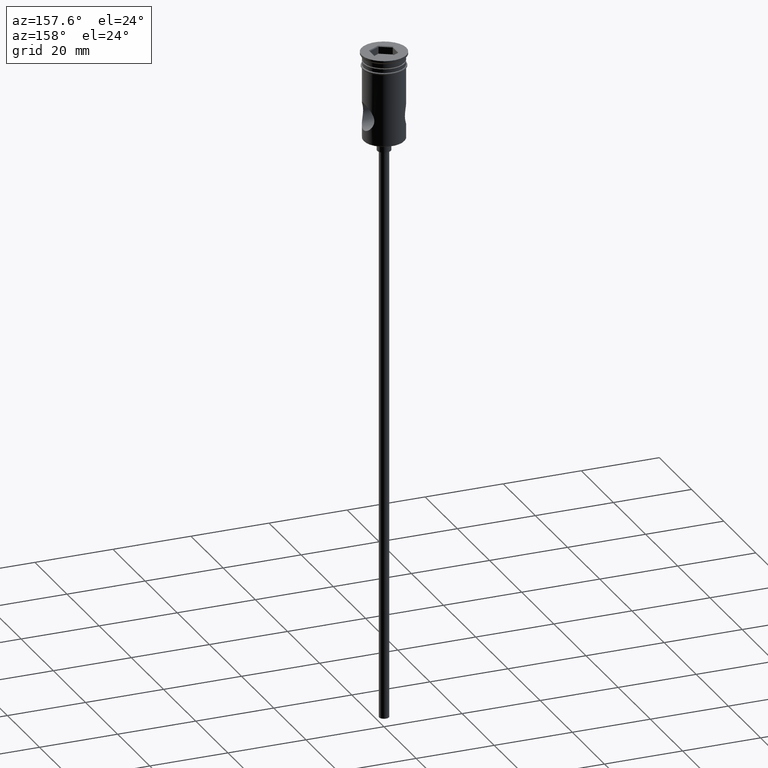
[diagram: clean part render]
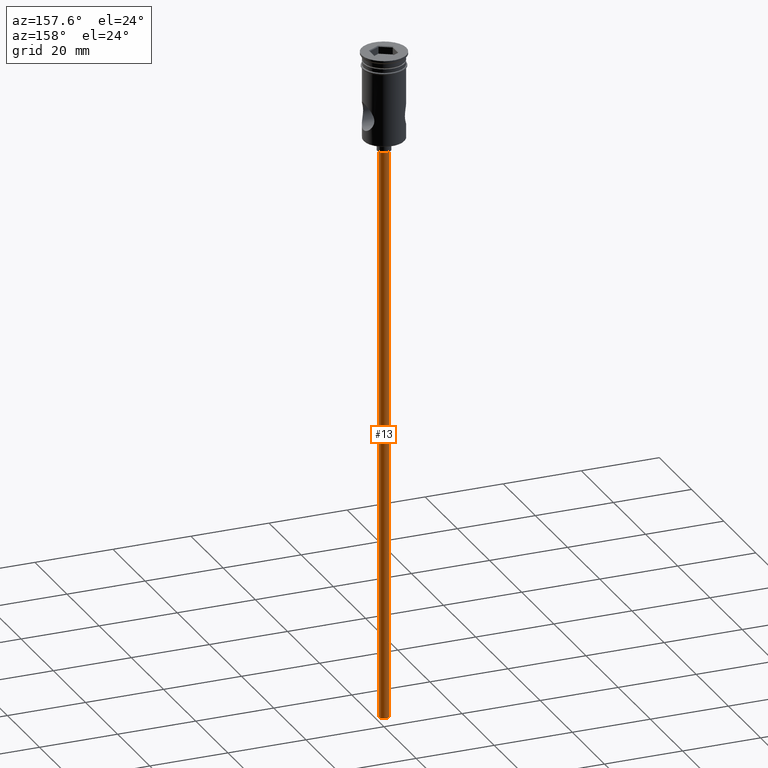
[diagram: same view with one face highlighted and labeled with its STEP entity id]
A machine part, auxiliary view. The second image highlights one B-rep face of the part: STEP entity #13.
In plain terms, the highlighted cylindrical surface (edge-blend (fillet) strip) has radius 1.25 mm, axis along (-0, -0, 1).
Its self-contained STEP definition (entity closure, byte-faithful):
#13 = ADVANCED_FACE ( 'NONE', ( #1373 ), #356, .T. ) ;
#43 = DIRECTION ( 'NONE',  ( 0.000000000000000000, 0.000000000000000000, -1.000000000000000000 ) ) ;
#44 = EDGE_LOOP ( 'NONE', ( #45, #599, #347, #1328 ) ) ;
#45 = ORIENTED_EDGE ( 'NONE', *, *, #849, .F. ) ;
#46 = CARTESIAN_POINT ( 'NONE',  ( 1.250000000000000000, 0.000000000000000000, -172.5000000000000000 ) ) ;
#68 = EDGE_CURVE ( 'NONE', #1384, #1239, #354, .T. ) ;
#77 = LINE ( 'NONE', #300, #545 ) ;
#113 = AXIS2_PLACEMENT_3D ( 'NONE', #806, #366, #217 ) ;
#187 = DIRECTION ( 'NONE',  ( -0.000000000000000000, -0.000000000000000000, 1.000000000000000000 ) ) ;
#200 = VERTEX_POINT ( 'NONE', #883 ) ;
#217 = DIRECTION ( 'NONE',  ( 1.000000000000000000, 0.000000000000000000, 0.000000000000000000 ) ) ;
#230 = DIRECTION ( 'NONE',  ( -1.000000000000000000, 0.000000000000000000, 0.000000000000000000 ) ) ;
#242 = CARTESIAN_POINT ( 'NONE',  ( 0.000000000000000000, 0.000000000000000000, -172.5000000000000000 ) ) ;
#300 = CARTESIAN_POINT ( 'NONE',  ( 1.250000000000000000, 0.000000000000000000, -172.5000000000000000 ) ) ;
#347 = ORIENTED_EDGE ( 'NONE', *, *, #68, .T. ) ;
#351 = DIRECTION ( 'NONE',  ( 0.000000000000000000, 0.000000000000000000, -1.000000000000000000 ) ) ;
#354 = CIRCLE ( 'NONE', #383, 1.250000000000000000 ) ;
#356 = CYLINDRICAL_SURFACE ( 'NONE', #113, 1.250000000000000000 ) ;
#366 = DIRECTION ( 'NONE',  ( -0.000000000000000000, -0.000000000000000000, 1.000000000000000000 ) ) ;
#383 = AXIS2_PLACEMENT_3D ( 'NONE', #1353, #351, #1233 ) ;
#403 = CARTESIAN_POINT ( 'NONE',  ( 1.250000000000000000, 0.000000000000000000, -25.50000000000000000 ) ) ;
#466 = CARTESIAN_POINT ( 'NONE',  ( -1.250000000000000000, 1.530808498934191571E-16, -25.50000000000000000 ) ) ;
#502 = VECTOR ( 'NONE', #756, 1000.000000000000000 ) ;
#532 = LINE ( 'NONE', #1332, #502 ) ;
#545 = VECTOR ( 'NONE', #187, 1000.000000000000000 ) ;
#597 = EDGE_CURVE ( 'NONE', #200, #1384, #532, .T. ) ;
#599 = ORIENTED_EDGE ( 'NONE', *, *, #597, .T. ) ;
#638 = AXIS2_PLACEMENT_3D ( 'NONE', #242, #43, #230 ) ;
#748 = VERTEX_POINT ( 'NONE', #46 ) ;
#756 = DIRECTION ( 'NONE',  ( -0.000000000000000000, -0.000000000000000000, 1.000000000000000000 ) ) ;
#806 = CARTESIAN_POINT ( 'NONE',  ( 0.000000000000000000, 0.000000000000000000, -172.5000000000000000 ) ) ;
#849 = EDGE_CURVE ( 'NONE', #200, #748, #902, .T. ) ;
#883 = CARTESIAN_POINT ( 'NONE',  ( -1.250000000000000000, 1.530808498934191571E-16, -172.5000000000000000 ) ) ;
#902 = CIRCLE ( 'NONE', #638, 1.250000000000000000 ) ;
#989 = EDGE_CURVE ( 'NONE', #748, #1239, #77, .T. ) ;
#1233 = DIRECTION ( 'NONE',  ( -1.000000000000000000, 0.000000000000000000, 0.000000000000000000 ) ) ;
#1239 = VERTEX_POINT ( 'NONE', #403 ) ;
#1328 = ORIENTED_EDGE ( 'NONE', *, *, #989, .F. ) ;
#1332 = CARTESIAN_POINT ( 'NONE',  ( -1.250000000000000000, 1.530808498934191571E-16, -172.5000000000000000 ) ) ;
#1353 = CARTESIAN_POINT ( 'NONE',  ( 0.000000000000000000, 0.000000000000000000, -25.50000000000000000 ) ) ;
#1373 = FACE_OUTER_BOUND ( 'NONE', #44, .T. ) ;
#1384 = VERTEX_POINT ( 'NONE', #466 ) ;